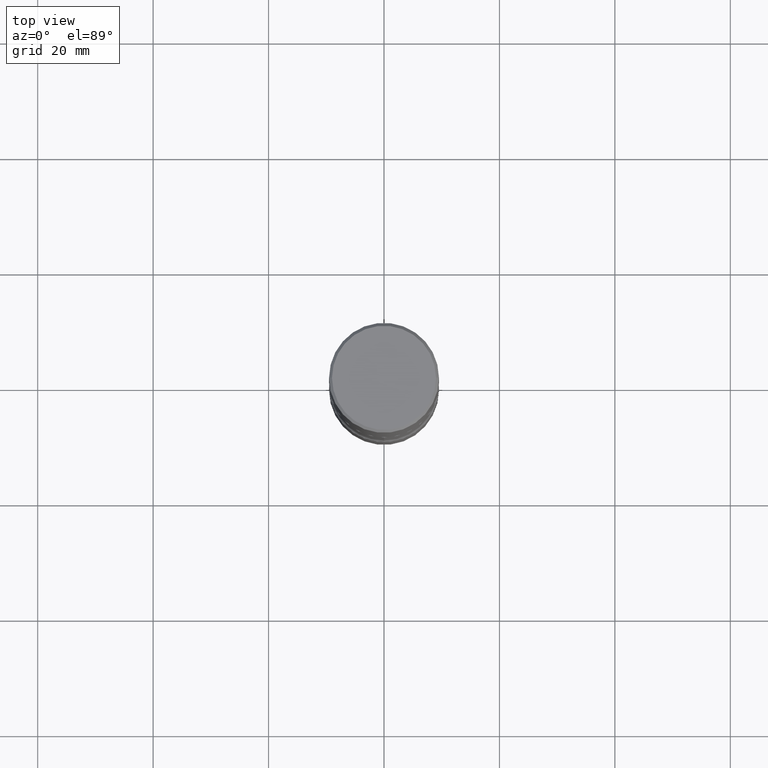
[diagram: clean part render]
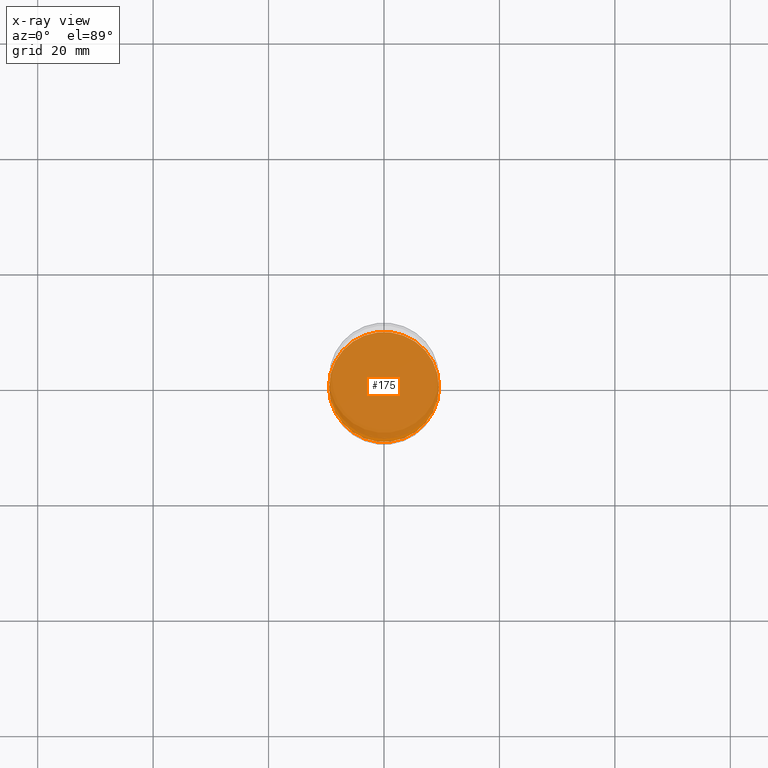
[diagram: x-ray — body ghosted, one internal face saturated and labeled with its STEP entity id]
A machine part, top view, then the same camera in x-ray: the body is ghosted and one INTERNAL B-rep face — a face not visible from any outside direction — is saturated and labeled: STEP entity #175.
In plain terms, the highlighted planar face has unit normal (0, -0, -1).
Its self-contained STEP definition (entity closure, byte-faithful):
#16 = CARTESIAN_POINT ( 'NONE',  ( 8.864824422421121284E-29, -1.265661985330640417E-14, -3.625000000000000444 ) ) ;
#50 = AXIS2_PLACEMENT_3D ( 'NONE', #167, #287, #253 ) ;
#56 = CARTESIAN_POINT ( 'NONE',  ( 8.864824422421121284E-29, -1.265661985330640417E-14, -3.625000000000000444 ) ) ;
#60 = DIRECTION ( 'NONE',  ( 1.000000000000000000, -6.982962677686263555E-15, 0.000000000000000000 ) ) ;
#98 = VERTEX_POINT ( 'NONE', #124 ) ;
#106 = DIRECTION ( 'NONE',  ( -2.445468806185136597E-29, 3.491481338843145583E-15, 1.000000000000000000 ) ) ;
#124 = CARTESIAN_POINT ( 'NONE',  ( 0.3750000000000002220, -1.527523085743875418E-14, -3.625000000000000444 ) ) ;
#132 = ORIENTED_EDGE ( 'NONE', *, *, #228, .T. ) ;
#150 = EDGE_LOOP ( 'NONE', ( #132, #361 ) ) ;
#167 = CARTESIAN_POINT ( 'NONE',  ( 8.864824422421121284E-29, -1.265661985330640417E-14, -3.625000000000000444 ) ) ;
#175 = ADVANCED_FACE ( 'NONE', ( #408 ), #364, .F. ) ;
#202 = AXIS2_PLACEMENT_3D ( 'NONE', #56, #360, #493 ) ;
#228 = EDGE_CURVE ( 'NONE', #98, #282, #513, .T. ) ;
#253 = DIRECTION ( 'NONE',  ( 1.000000000000000000, -6.982962677686263555E-15, 0.000000000000000000 ) ) ;
#270 = AXIS2_PLACEMENT_3D ( 'NONE', #16, #106, #60 ) ;
#282 = VERTEX_POINT ( 'NONE', #537 ) ;
#287 = DIRECTION ( 'NONE',  ( -2.445468806185136597E-29, 3.491481338843145583E-15, 1.000000000000000000 ) ) ;
#298 = CIRCLE ( 'NONE', #50, 0.3750000000000002220 ) ;
#360 = DIRECTION ( 'NONE',  ( 2.438088387897960049E-29, -3.491481338843145188E-15, -1.000000000000000000 ) ) ;
#361 = ORIENTED_EDGE ( 'NONE', *, *, #415, .T. ) ;
#364 = PLANE ( 'NONE',  #202 ) ;
#408 = FACE_OUTER_BOUND ( 'NONE', #150, .T. ) ;
#415 = EDGE_CURVE ( 'NONE', #282, #98, #298, .T. ) ;
#493 = DIRECTION ( 'NONE',  ( -1.000000000000000000, 6.982962677686265922E-15, -4.876176775795935793E-29 ) ) ;
#513 = CIRCLE ( 'NONE', #270, 0.3750000000000002220 ) ;
#537 = CARTESIAN_POINT ( 'NONE',  ( -0.3750000000000002220, -1.196477155065240166E-14, -3.625000000000000444 ) ) ;